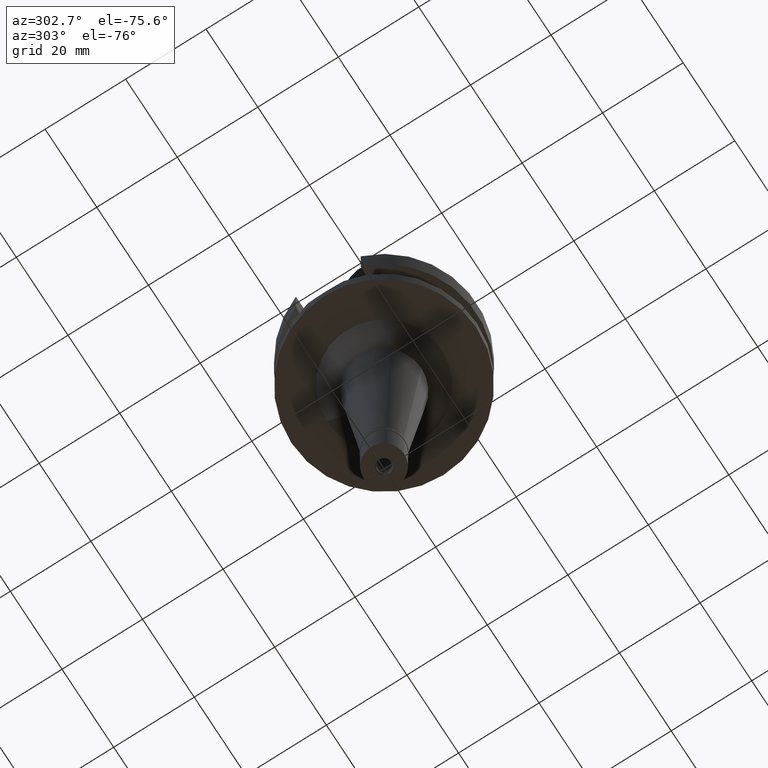
[diagram: clean part render]
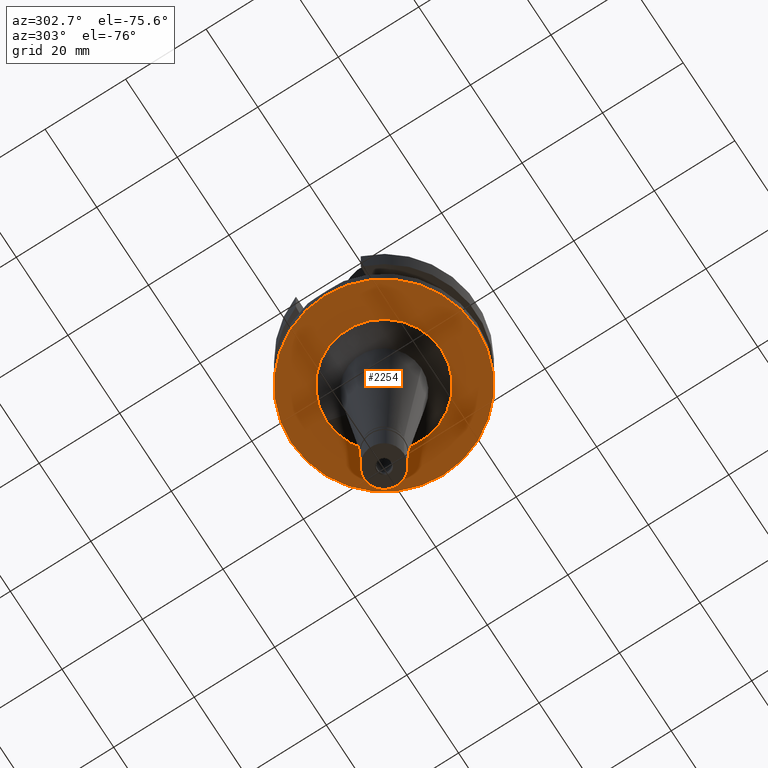
[diagram: same view with one face highlighted and labeled with its STEP entity id]
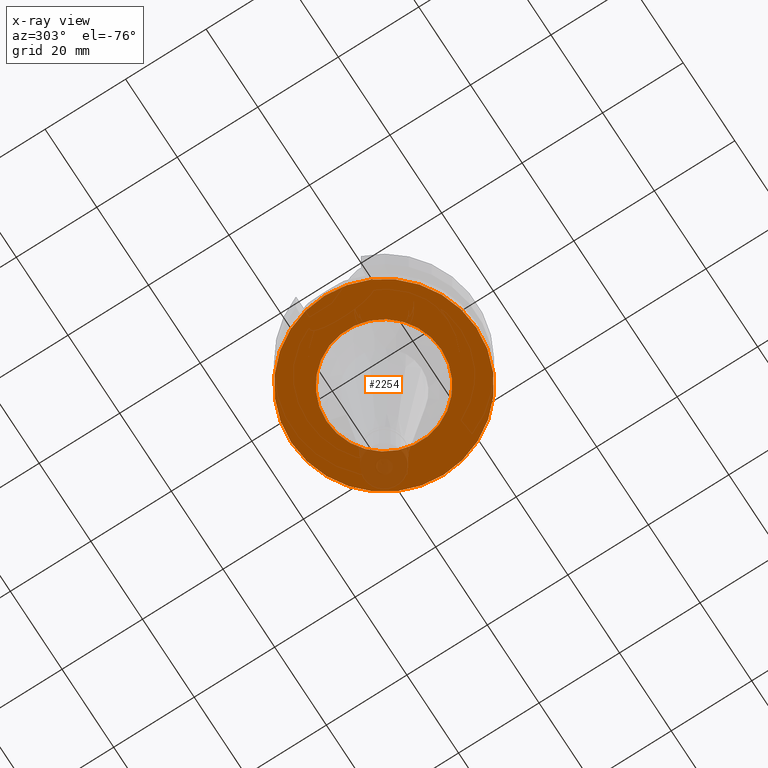
[diagram: x-ray of the same camera — body ghosted, the highlighted face saturated]
A machine part, auxiliary view. The second image highlights one B-rep face of the part: STEP entity #2254.
The next image is the same camera in x-ray: the body ghosted, the highlighted face saturated — about 7% of this face is hidden behind the body in this view.
In plain terms, the highlighted planar face has unit normal (0, 0, -1).
Its self-contained STEP definition (entity closure, byte-faithful):
#29 = ORIENTED_EDGE ( 'NONE', *, *, #361, .F. ) ;
#224 = PLANE ( 'NONE',  #1438 ) ;
#361 = EDGE_CURVE ( 'NONE', #2177, #1336, #1298, .T. ) ;
#378 = DIRECTION ( 'NONE',  ( 0.0000000000000000000, 1.000000000000000000, 0.0000000000000000000 ) ) ;
#390 = AXIS2_PLACEMENT_3D ( 'NONE', #2138, #2818, #795 ) ;
#406 = VERTEX_POINT ( 'NONE', #2400 ) ;
#465 = CARTESIAN_POINT ( 'NONE',  ( 0.0000000000000000000, 0.0000000000000000000, -22.00000000000000000 ) ) ;
#479 = AXIS2_PLACEMENT_3D ( 'NONE', #465, #496, #1355 ) ;
#496 = DIRECTION ( 'NONE',  ( 0.0000000000000000000, 0.0000000000000000000, -1.000000000000000000 ) ) ;
#541 = EDGE_LOOP ( 'NONE', ( #901, #1104 ) ) ;
#696 = FACE_BOUND ( 'NONE', #1516, .T. ) ;
#768 = CARTESIAN_POINT ( 'NONE',  ( 0.0000000000000000000, 1.899855811856999906E-14, -22.00000000000000000 ) ) ;
#795 = DIRECTION ( 'NONE',  ( 0.0000000000000000000, 1.000000000000000000, 0.0000000000000000000 ) ) ;
#835 = DIRECTION ( 'NONE',  ( 0.0000000000000000000, 0.0000000000000000000, -1.000000000000000000 ) ) ;
#901 = ORIENTED_EDGE ( 'NONE', *, *, #1453, .F. ) ;
#918 = DIRECTION ( 'NONE',  ( 0.0000000000000000000, -1.000000000000000000, 0.0000000000000000000 ) ) ;
#997 = VERTEX_POINT ( 'NONE', #2869 ) ;
#1100 = EDGE_CURVE ( 'NONE', #1336, #2177, #2186, .T. ) ;
#1104 = ORIENTED_EDGE ( 'NONE', *, *, #2423, .F. ) ;
#1136 = CARTESIAN_POINT ( 'NONE',  ( 0.0000000000000000000, 0.0000000000000000000, -22.00000000000000000 ) ) ;
#1298 = CIRCLE ( 'NONE', #2346, 14.28694451276999899 ) ;
#1336 = VERTEX_POINT ( 'NONE', #1930 ) ;
#1355 = DIRECTION ( 'NONE',  ( 0.0000000000000000000, -1.000000000000000000, 0.0000000000000000000 ) ) ;
#1359 = FACE_OUTER_BOUND ( 'NONE', #541, .T. ) ;
#1438 = AXIS2_PLACEMENT_3D ( 'NONE', #1136, #2678, #918 ) ;
#1453 = EDGE_CURVE ( 'NONE', #997, #406, #2102, .T. ) ;
#1513 = ORIENTED_EDGE ( 'NONE', *, *, #1100, .F. ) ;
#1516 = EDGE_LOOP ( 'NONE', ( #29, #1513 ) ) ;
#1521 = DIRECTION ( 'NONE',  ( 0.0000000000000000000, -1.000000000000000000, 0.0000000000000000000 ) ) ;
#1674 = DIRECTION ( 'NONE',  ( 0.0000000000000000000, 0.0000000000000000000, 1.000000000000000000 ) ) ;
#1873 = CIRCLE ( 'NONE', #2111, 23.00000000000000000 ) ;
#1930 = CARTESIAN_POINT ( 'NONE',  ( 0.0000000000000000000, -14.28694451276999899, -22.00000000000000000 ) ) ;
#2102 = CIRCLE ( 'NONE', #390, 23.00000000000000000 ) ;
#2111 = AXIS2_PLACEMENT_3D ( 'NONE', #768, #1674, #1521 ) ;
#2138 = CARTESIAN_POINT ( 'NONE',  ( 0.0000000000000000000, 1.899855811856999906E-14, -22.00000000000000000 ) ) ;
#2177 = VERTEX_POINT ( 'NONE', #2448 ) ;
#2186 = CIRCLE ( 'NONE', #479, 14.28694451276999899 ) ;
#2254 = ADVANCED_FACE ( 'NONE', ( #1359, #696 ), #224, .T. ) ;
#2346 = AXIS2_PLACEMENT_3D ( 'NONE', #2368, #835, #378 ) ;
#2368 = CARTESIAN_POINT ( 'NONE',  ( 0.0000000000000000000, 0.0000000000000000000, -22.00000000000000000 ) ) ;
#2400 = CARTESIAN_POINT ( 'NONE',  ( 0.0000000000000000000, -23.00000000000000000, -22.00000000000000000 ) ) ;
#2423 = EDGE_CURVE ( 'NONE', #406, #997, #1873, .T. ) ;
#2448 = CARTESIAN_POINT ( 'NONE',  ( 0.0000000000000000000, 14.28694451276999899, -22.00000000000000000 ) ) ;
#2678 = DIRECTION ( 'NONE',  ( 0.0000000000000000000, 0.0000000000000000000, -1.000000000000000000 ) ) ;
#2818 = DIRECTION ( 'NONE',  ( 0.0000000000000000000, 0.0000000000000000000, 1.000000000000000000 ) ) ;
#2869 = CARTESIAN_POINT ( 'NONE',  ( 0.0000000000000000000, 23.00000000000000000, -22.00000000000000000 ) ) ;